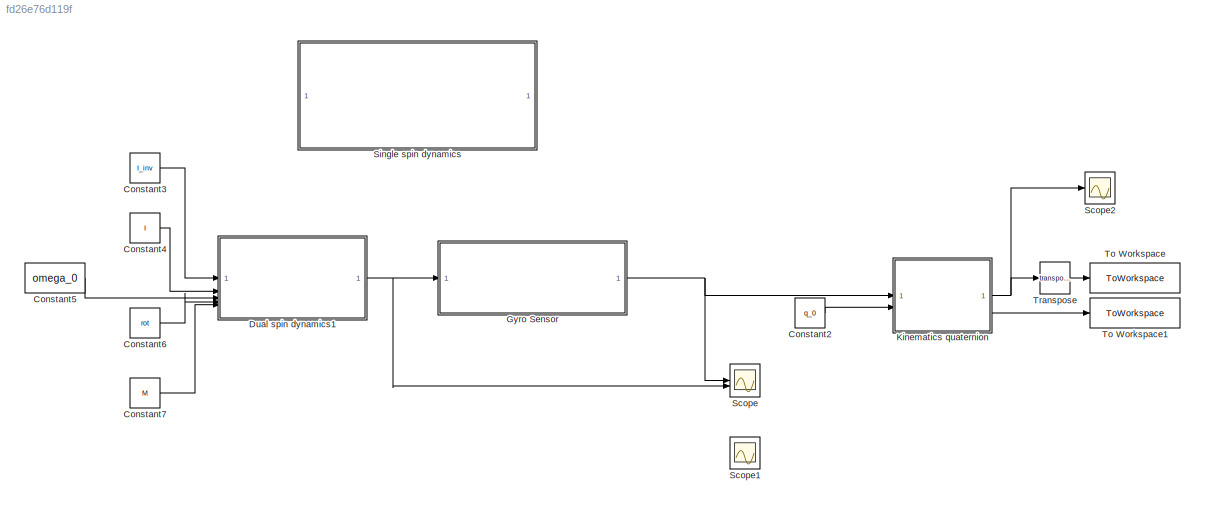
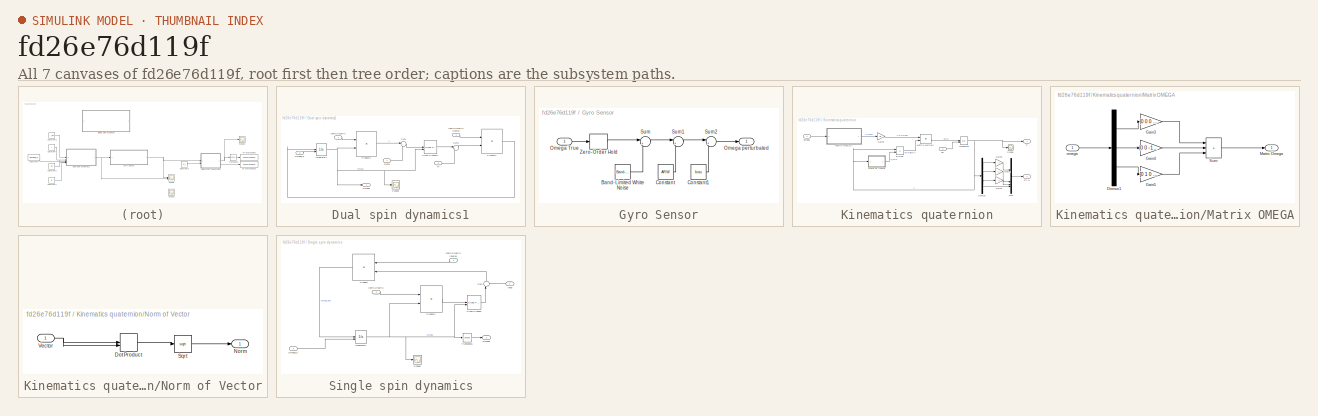
[diagram: thumbnail index - all 7 canvases of the model, root first then tree order]
MODEL slx_fd26e76d119f
KIND model
CONFIG AbsTol = auto
CONFIG EnableMultiTasking = off
CONFIG FixedStep = 0.1
CONFIG MaxStep = auto
CONFIG MinStep = auto
CONFIG RelTol = 1e-3
CONFIG SampleTimeConstraint = Unconstrained
CONFIG SolverName = ode3
CONFIG StartTime = t0
CONFIG StopTime = tf
BLOCK [Constant] Constant2
  Value = q_0
  VectorParams1D = off
BLOCK [Constant] Constant3
  Value = I_inv
  VectorParams1D = off
BLOCK [Constant] Constant4
  Value = I
  VectorParams1D = off
BLOCK [Constant] Constant5
  Value = omega_0
  VectorParams1D = off
BLOCK [Constant] Constant6
  Value = rot
  VectorParams1D = off
BLOCK [Constant] Constant7
  Value = M
  VectorParams1D = off
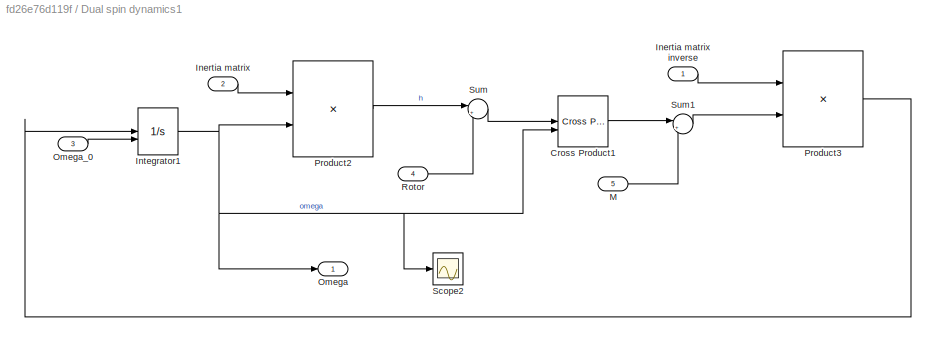
BLOCK [SubSystem] Dual spin dynamics1
BLOCK [Reference] Dual spin dynamics1/Cross Product1  REF=matrix_library/Cross Product
  LibrarySourceBlock = simulink/Matrix\nOperations/Cross Product
  SourceBlock = matrix_library/Cross Product
  SourceType = CrossProduct
BLOCK [Inport] Dual spin dynamics1/Inertia matrix
  Port = 2
BLOCK [Inport] Dual spin dynamics1/Inertia matrix inverse
BLOCK [Integrator] Dual spin dynamics1/Integrator1
  InitialConditionSource = external
BLOCK [Inport] Dual spin dynamics1/M
  Port = 5
BLOCK [Outport] Dual spin dynamics1/Omega
BLOCK [Inport] Dual spin dynamics1/Omega_0
  Port = 3
BLOCK [Product] Dual spin dynamics1/Product2
  Multiplication = Matrix(*)
BLOCK [Product] Dual spin dynamics1/Product3
  Multiplication = Matrix(*)
BLOCK [Inport] Dual spin dynamics1/Rotor
  Port = 4
BLOCK [Scope] Dual spin dynamics1/Scope2
  Floating = off
  NumInputPorts = 1
  ScopeSpecificationString = Simulink.scopes.TimeScopeBlockCfg('CurrentConfiguration', extmgr.ConfigurationSet(extmgr.Configuration('Core','General UI',true),extmgr.Configuration('Core','Source UI',true),extmgr.Configuration('Sources','WiredSimulink',true,'DataLoggingVariableName','ScopeData1'),extmgr.Configuration('Visuals','Time Domain',true,'SerializedDisplays',{struct('MinYLimReal','-0.19283','MaxYLimReal','0.27408','YLab...<+1426ch>
BLOCK [Sum] Dual spin dynamics1/Sum
  Inputs = |++
BLOCK [Sum] Dual spin dynamics1/Sum1
  Inputs = |++
BLOCK [SubSystem] Gyro Sensor
BLOCK [Reference] Gyro Sensor/Band-Limited White Noise  REF=simulink/Sources/Band-Limited
White Noise
  SourceBlock = simulink/Sources/Band-Limited\nWhite Noise
  SourceType = Band-Limited White Noise.
BLOCK [Constant] Gyro Sensor/Constant
  Value = ARW
  VectorParams1D = off
BLOCK [Constant] Gyro Sensor/Constant1
  Value = bias
  VectorParams1D = off
BLOCK [Inport] Gyro Sensor/Omega True
BLOCK [Outport] Gyro Sensor/Omega perturbated
BLOCK [Sum] Gyro Sensor/Sum
  Inputs = |++
BLOCK [Sum] Gyro Sensor/Sum1
  Inputs = |++
BLOCK [Sum] Gyro Sensor/Sum2
  Inputs = |++
BLOCK [ZeroOrderHold] Gyro Sensor/Zero-Order Hold
  SampleTime = -1
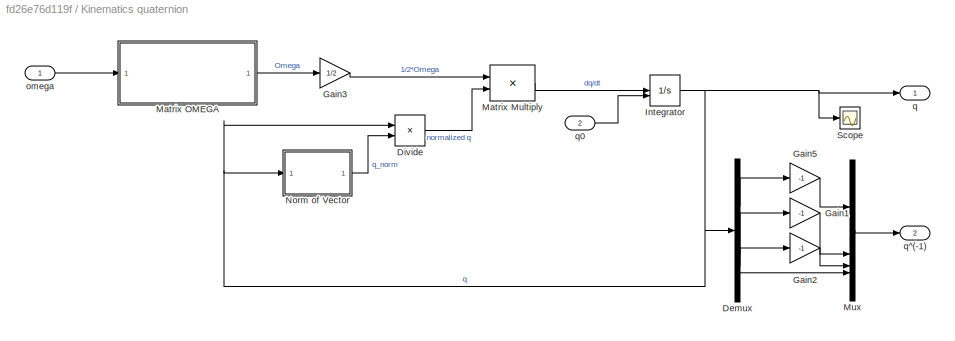
BLOCK [SubSystem] Kinematics quaternion
  AncestorBlock = LibrarySAD5/Kinematics quaternion
BLOCK [Demux] Kinematics quaternion/Demux
BLOCK [Product] Kinematics quaternion/Divide
  Inputs = */
BLOCK [Gain] Kinematics quaternion/Gain1
  Gain = -1
BLOCK [Gain] Kinematics quaternion/Gain2
  Gain = -1
BLOCK [Gain] Kinematics quaternion/Gain3
  Gain = 1/2
BLOCK [Gain] Kinematics quaternion/Gain5
  Gain = -1
BLOCK [Integrator] Kinematics quaternion/Integrator
  InitialConditionSource = external
BLOCK [Product] Kinematics quaternion/Matrix Multiply
  Multiplication = Matrix(*)
BLOCK [SubSystem] Kinematics quaternion/Matrix OMEGA
BLOCK [Demux] Kinematics quaternion/Matrix OMEGA/Demux1
  Outputs = 3
BLOCK [Gain] Kinematics quaternion/Matrix OMEGA/Gain3
  Gain = [0 0 0 1; 0 0 1 0; 0 -1 0 0; -1 0 0 0]
BLOCK [Gain] Kinematics quaternion/Matrix OMEGA/Gain4
  Gain = [0 0 -1 0; 0 0 0 1; 1 0 0 0; 0 -1 0 0]
BLOCK [Gain] Kinematics quaternion/Matrix OMEGA/Gain5
  Gain = [0 1 0 0; -1 0 0 0; 0 0 0 1; 0 0 -1 0]
BLOCK [Outport] Kinematics quaternion/Matrix OMEGA/Matrix Omega
BLOCK [Sum] Kinematics quaternion/Matrix OMEGA/Sum
  IconShape = rectangular
  Inputs = +++
BLOCK [Inport] Kinematics quaternion/Matrix OMEGA/omega
BLOCK [Mux] Kinematics quaternion/Mux
  DisplayOption = bar
BLOCK [SubSystem] Kinematics quaternion/Norm of Vector
BLOCK [DotProduct] Kinematics quaternion/Norm of Vector/Dot Product
  OutDataTypeStr = Inherit: Inherit via internal rule
BLOCK [Outport] Kinematics quaternion/Norm of Vector/Norm
BLOCK [Sqrt] Kinematics quaternion/Norm of Vector/Sqrt
BLOCK [Inport] Kinematics quaternion/Norm of Vector/Vector
BLOCK [Scope] Kinematics quaternion/Scope
  Floating = off
  NumInputPorts = 1
  ScopeSpecificationString = Simulink.scopes.TimeScopeBlockCfg('CurrentConfiguration', extmgr.ConfigurationSet(extmgr.Configuration('Core','General UI',true),extmgr.Configuration('Core','Source UI',true),extmgr.Configuration('Sources','WiredSimulink',true,'DataLoggingVariableName','ScopeData1'),extmgr.Configuration('Visuals','Time Domain',true),extmgr.Configuration('Tools','Plot Navigation',true),extmgr.Configuration('Tools',...<+40ch>
BLOCK [Inport] Kinematics quaternion/omega
BLOCK [Outport] Kinematics quaternion/q
BLOCK [Inport] Kinematics quaternion/q0
  Port = 2
BLOCK [Outport] Kinematics quaternion/q^(-1)
  Port = 2
BLOCK [Scope] Scope
  Floating = off
  NumInputPorts = 2
  ScopeSpecificationString = Simulink.scopes.TimeScopeBlockCfg('CurrentConfiguration', extmgr.ConfigurationSet(extmgr.Configuration('Core','General UI',true),extmgr.Configuration('Core','Source UI',true),extmgr.Configuration('Sources','WiredSimulink',true),extmgr.Configuration('Visuals','Time Domain',true,'SerializedDisplays',{struct('MinYLimReal','-1.04382','MaxYLimReal','1.03716','YLabelReal','','MinYLimMag','0.00000','MaxY...<+1444ch>
BLOCK [Scope] Scope1
  Floating = off
  NumInputPorts = 1
  ScopeSpecificationString = Simulink.scopes.TimeScopeBlockCfg('CurrentConfiguration', extmgr.ConfigurationSet(extmgr.Configuration('Core','General UI',true),extmgr.Configuration('Core','Source UI',true),extmgr.Configuration('Sources','WiredSimulink',true,'DataLoggingVariableName','ScopeData1'),extmgr.Configuration('Visuals','Time Domain',true,'SerializedDisplays',{struct('MinYLimReal','-1.01318','MaxYLimReal','1.01317','YLab...<+1463ch>
BLOCK [Scope] Scope2
  Floating = off
  NumInputPorts = 1
  ScopeSpecificationString = Simulink.scopes.TimeScopeBlockCfg('CurrentConfiguration', extmgr.ConfigurationSet(extmgr.Configuration('Core','General UI',true),extmgr.Configuration('Core','Source UI',true),extmgr.Configuration('Sources','WiredSimulink',true,'DataLoggingVariableName','ScopeData2'),extmgr.Configuration('Visuals','Time Domain',true,'SerializedDisplays',{struct('MinYLimReal','-1.24608','MaxYLimReal','1.24956','YLab...<+1506ch>
BLOCK [SubSystem] Single spin dynamics
  AncestorBlock = My_library/Single spin dynamics
BLOCK [Reference] Single spin dynamics/Cross Product  REF=matrix_library/Cross Product
  LibrarySourceBlock = simulink/Matrix\nOperations/Cross Product
  SourceBlock = matrix_library/Cross Product
  SourceType = CrossProduct
BLOCK [Inport] Single spin dynamics/Inertia matrix
  Port = 2
BLOCK [Inport] Single spin dynamics/Inertia matrix inverse
BLOCK [Inport] Single spin dynamics/Input
  NameLocation = top
  Port = 4
BLOCK [Integrator] Single spin dynamics/Integrator1
  InitialConditionSource = external
BLOCK [Outport] Single spin dynamics/Omega
BLOCK [Inport] Single spin dynamics/Omega_0
  Port = 3
BLOCK [Product] Single spin dynamics/Product
  Multiplication = Matrix(*)
  NameLocation = top
BLOCK [Product] Single spin dynamics/Product1
  Multiplication = Matrix(*)
BLOCK [Scope] Single spin dynamics/Scope2
  Floating = off
  NumInputPorts = 1
  ScopeSpecificationString = Simulink.scopes.TimeScopeBlockCfg('CurrentConfiguration', extmgr.ConfigurationSet(extmgr.Configuration('Core','General UI',true),extmgr.Configuration('Core','Source UI',true),extmgr.Configuration('Sources','WiredSimulink',true),extmgr.Configuration('Visuals','Time Domain',true,'SerializedDisplays',{struct('MinYLimReal','-1.01318','MaxYLimReal','1.01317','YLabelReal','','MinYLimMag','0.00000','MaxY...<+1389ch>
BLOCK [Sum] Single spin dynamics/Sum
  Inputs = |++
  NameLocation = right
BLOCK [Math] Single spin dynamics/Transpose1
  Operator = transpose
BLOCK [ToWorkspace] To Workspace
  FixptAsFi = on
  MaxDataPoints = inf
  SampleTime = -1
  Save2DSignal = 2-D array (concatenate along first dimension)
  VariableName = quat
BLOCK [ToWorkspace] To Workspace1
  FixptAsFi = on
  MaxDataPoints = inf
  SampleTime = -1
  Save2DSignal = 2-D array (concatenate along first dimension)
  VariableName = quat_1
BLOCK [Math] Transpose
  Operator = transpose
LINE Constant2:1 -> Kinematics quaternion:2
LINE Constant3:1 -> Dual spin dynamics1:1
LINE Constant4:1 -> Dual spin dynamics1:2
LINE Constant5:1 -> Dual spin dynamics1:3
LINE Constant6:1 -> Dual spin dynamics1:4
LINE Constant7:1 -> Dual spin dynamics1:5
LINE Dual spin dynamics1/Cross Product1:1 -> Dual spin dynamics1/Sum1:1
LINE Dual spin dynamics1/Inertia matrix inverse:1 -> Dual spin dynamics1/Product3:1
LINE Dual spin dynamics1/Inertia matrix:1 -> Dual spin dynamics1/Product2:1
NET Dual spin dynamics1/Integrator1:1 -> Dual spin dynamics1/Cross Product1:2, Dual spin dynamics1/Omega:1, Dual spin dynamics1/Product2:2, Dual spin dynamics1/Scope2:1
LINE Dual spin dynamics1/M:1 -> Dual spin dynamics1/Sum1:2
LINE Dual spin dynamics1/Omega_0:1 -> Dual spin dynamics1/Integrator1:2
LINE Dual spin dynamics1/Product2:1 -> Dual spin dynamics1/Sum:1
LINE Dual spin dynamics1/Product3:1 -> Dual spin dynamics1/Integrator1:1
LINE Dual spin dynamics1/Rotor:1 -> Dual spin dynamics1/Sum:2
LINE Dual spin dynamics1/Sum1:1 -> Dual spin dynamics1/Product3:2
LINE Dual spin dynamics1/Sum:1 -> Dual spin dynamics1/Cross Product1:1
NET Dual spin dynamics1:1 -> Gyro Sensor:1, Scope:2
LINE Gyro Sensor/Band-Limited White Noise:1 -> Gyro Sensor/Sum:2
LINE Gyro Sensor/Constant1:1 -> Gyro Sensor/Sum2:2
LINE Gyro Sensor/Constant:1 -> Gyro Sensor/Sum1:2
LINE Gyro Sensor/Omega True:1 -> Gyro Sensor/Zero-Order Hold:1
LINE Gyro Sensor/Sum1:1 -> Gyro Sensor/Sum2:1
LINE Gyro Sensor/Sum2:1 -> Gyro Sensor/Omega perturbated:1
LINE Gyro Sensor/Sum:1 -> Gyro Sensor/Sum1:1
LINE Gyro Sensor/Zero-Order Hold:1 -> Gyro Sensor/Sum:1
NET Gyro Sensor:1 -> Kinematics quaternion:1, Scope:1
NET Kinematics quaternion:1 -> Scope2:1, Transpose:1
LINE Kinematics quaternion:2 -> To Workspace1:1
LINE Transpose:1 -> To Workspace:1
note: NET lines group one-source signal fan-out (src -> all destinations, sorted); 1:1 wires keep LINE
